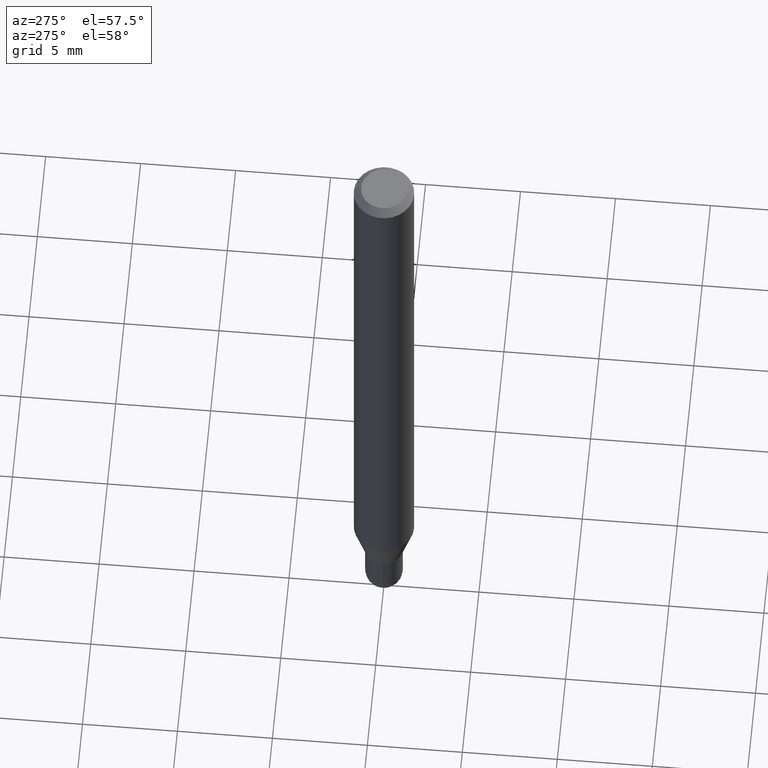
[diagram: clean part render]
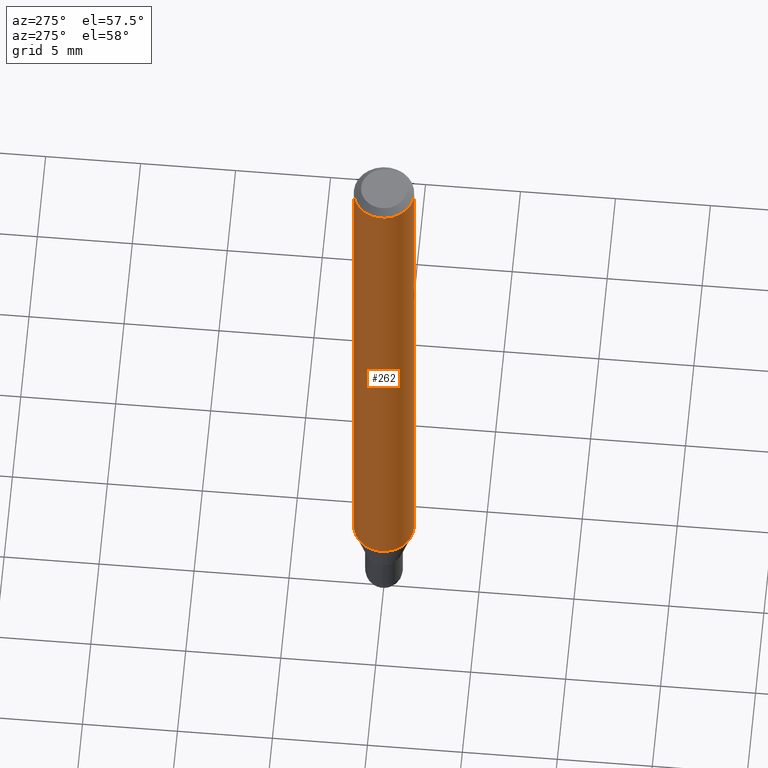
[diagram: same view with one face highlighted and labeled with its STEP entity id]
A machine part, auxiliary view. The second image highlights one B-rep face of the part: STEP entity #262.
In plain terms, the highlighted cylindrical surface (edge-blend (fillet) strip) has radius 1.5875 mm, axis along (-0, 0, 1).
Its self-contained STEP definition (entity closure, byte-faithful):
#7 = CARTESIAN_POINT ( 'NONE',  ( 4.440892098500944664E-16, 0.06249999999999995143, -0.01500000000000022669 ) ) ;
#8 = CARTESIAN_POINT ( 'NONE',  ( 3.668237859104355439E-31, -5.237172387740815938E-17, -0.01500000000000000812 ) ) ;
#13 = EDGE_LOOP ( 'NONE', ( #400, #408, #479, #132 ) ) ;
#17 = LINE ( 'NONE', #202, #437 ) ;
#26 = AXIS2_PLACEMENT_3D ( 'NONE', #376, #341, #497 ) ;
#46 = EDGE_CURVE ( 'NONE', #430, #189, #17, .T. ) ;
#68 = CARTESIAN_POINT ( 'NONE',  ( 4.440892098500625669E-16, 0.06250000000000000000, -2.182155161558671684E-16 ) ) ;
#70 = CARTESIAN_POINT ( 'NONE',  ( -4.364351673553912750E-16, -0.06250000000000005551, -0.01499999999999979128 ) ) ;
#75 = EDGE_CURVE ( 'NONE', #463, #189, #231, .T. ) ;
#95 = AXIS2_PLACEMENT_3D ( 'NONE', #8, #294, #165 ) ;
#105 = CIRCLE ( 'NONE', #26, 0.06250000000000000000 ) ;
#116 = CARTESIAN_POINT ( 'NONE',  ( 0.000000000000000000, 0.000000000000000000, 0.000000000000000000 ) ) ;
#124 = CARTESIAN_POINT ( 'NONE',  ( -4.364351673553602629E-16, -0.06250000000000455191, -1.295296806022133707 ) ) ;
#132 = ORIENTED_EDGE ( 'NONE', *, *, #75, .F. ) ;
#148 = VERTEX_POINT ( 'NONE', #344 ) ;
#150 = EDGE_CURVE ( 'NONE', #148, #463, #504, .T. ) ;
#158 = CYLINDRICAL_SURFACE ( 'NONE', #359, 0.06250000000000000000 ) ;
#165 = DIRECTION ( 'NONE',  ( -6.982962677686265922E-15, -1.000000000000000000, 3.483106191921935554E-15 ) ) ;
#189 = VERTEX_POINT ( 'NONE', #70 ) ;
#202 = CARTESIAN_POINT ( 'NONE',  ( -4.364351673553916201E-16, -0.06250000000000000000, 2.182155161558671684E-16 ) ) ;
#231 = CIRCLE ( 'NONE', #95, 0.06250000000000000000 ) ;
#234 = EDGE_CURVE ( 'NONE', #148, #430, #105, .T. ) ;
#262 = ADVANCED_FACE ( 'NONE', ( #433 ), #158, .T. ) ;
#273 = DIRECTION ( 'NONE',  ( -2.445491906069568494E-29, 3.491448258493875090E-15, 1.000000000000000000 ) ) ;
#294 = DIRECTION ( 'NONE',  ( -2.445491906069568494E-29, 3.491448258493875090E-15, 1.000000000000000000 ) ) ;
#306 = DIRECTION ( 'NONE',  ( -2.445491906069568494E-29, 3.491448258493875484E-15, 1.000000000000000000 ) ) ;
#341 = DIRECTION ( 'NONE',  ( -2.445491906069568494E-29, 3.491448258493875090E-15, 1.000000000000000000 ) ) ;
#344 = CARTESIAN_POINT ( 'NONE',  ( 4.440892098500939734E-16, 0.06249999999999544115, -1.295296806022134373 ) ) ;
#359 = AXIS2_PLACEMENT_3D ( 'NONE', #116, #273, #510 ) ;
#376 = CARTESIAN_POINT ( 'NONE',  ( 3.167637855084892691E-29, -4.522461777618659475E-15, -1.295296806022133929 ) ) ;
#400 = ORIENTED_EDGE ( 'NONE', *, *, #150, .F. ) ;
#408 = ORIENTED_EDGE ( 'NONE', *, *, #234, .T. ) ;
#430 = VERTEX_POINT ( 'NONE', #124 ) ;
#433 = FACE_OUTER_BOUND ( 'NONE', #13, .T. ) ;
#437 = VECTOR ( 'NONE', #488, 39.37007874015748143 ) ;
#463 = VERTEX_POINT ( 'NONE', #7 ) ;
#479 = ORIENTED_EDGE ( 'NONE', *, *, #46, .T. ) ;
#488 = DIRECTION ( 'NONE',  ( -2.445491906069568494E-29, 3.491448258493875484E-15, 1.000000000000000000 ) ) ;
#497 = DIRECTION ( 'NONE',  ( -6.982962677686265922E-15, -1.000000000000000000, 4.370956789862821150E-15 ) ) ;
#504 = LINE ( 'NONE', #68, #508 ) ;
#508 = VECTOR ( 'NONE', #306, 39.37007874015748143 ) ;
#510 = DIRECTION ( 'NONE',  ( -6.982962677686265922E-15, -1.000000000000000000, 3.491448258493874695E-15 ) ) ;